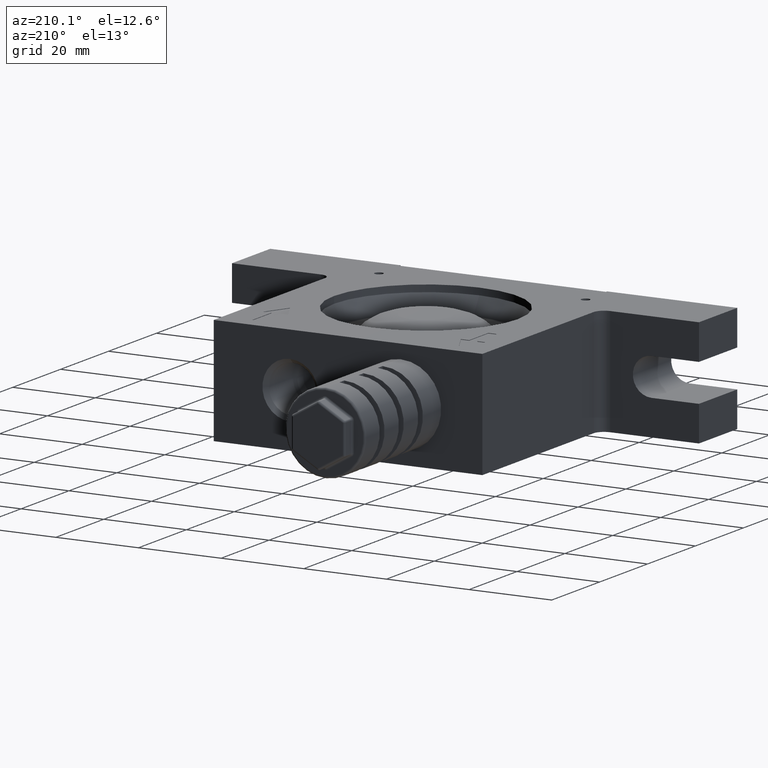
[diagram: clean part render]
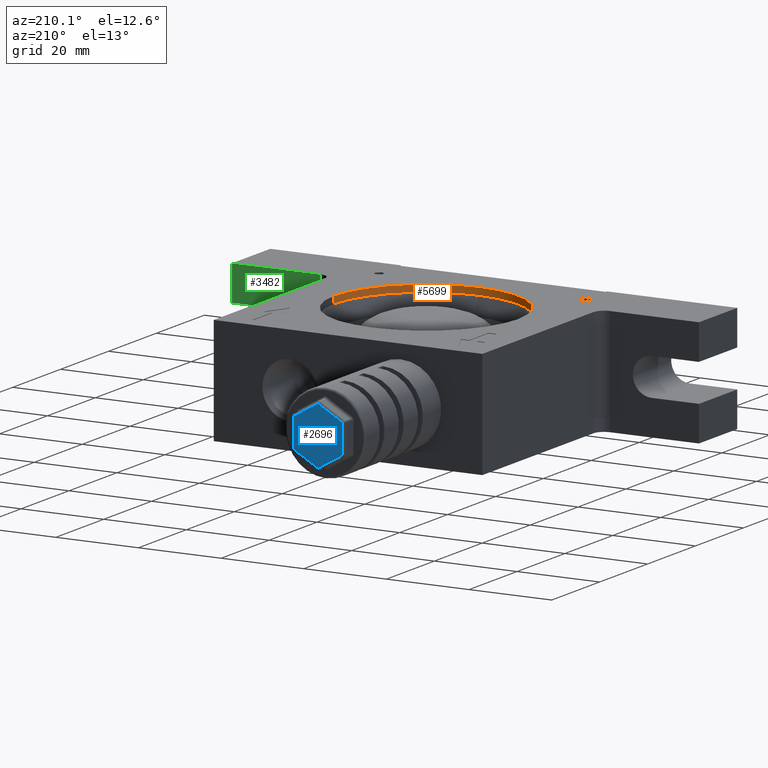
[diagram: same view with three faces highlighted in distinct colors, each labeled with its STEP entity id]
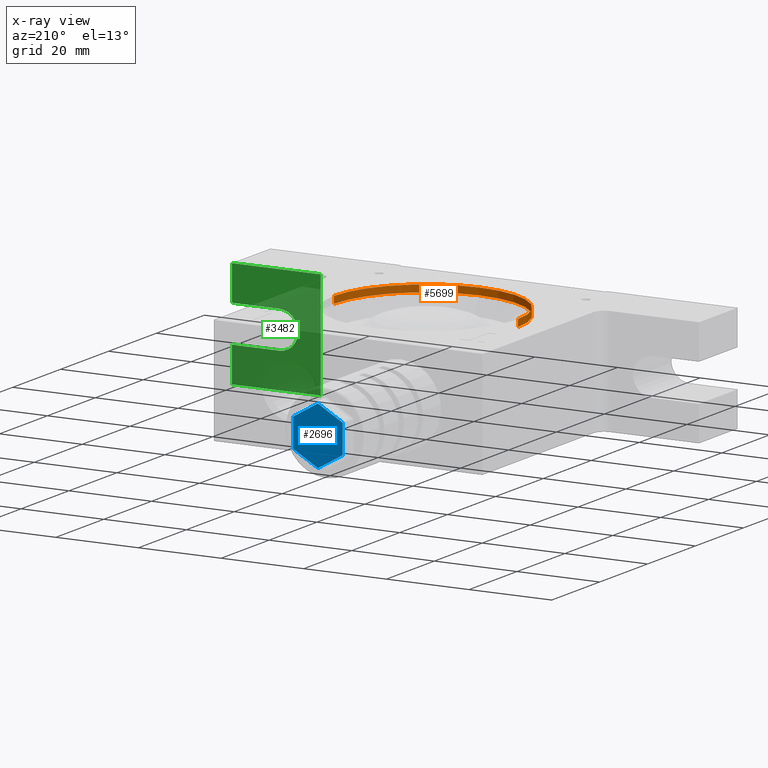
[diagram: x-ray of the same camera — body ghosted, the three highlighted faces saturated]
A machine part, auxiliary view with three faces highlighted in distinct colors.
The next image is the same camera in x-ray (body ghosted, the three faces saturated) — at least one of them is partly hidden behind the body in this view.
Their STEP definitions:

[orange] entity #5699 — the highlighted cylindrical surface (partial cylindrical patch) has radius 22.25 mm, axis along (0, 0, -1).
#55 = LINE ( 'NONE', #6771, #5651 ) ;
#177 = EDGE_CURVE ( 'NONE', #4471, #1538, #5613, .T. ) ;
#179 = DIRECTION ( 'NONE',  ( -1.000000000000000000, 0.0000000000000000000, 0.0000000000000000000 ) ) ;
#322 = ORIENTED_EDGE ( 'NONE', *, *, #177, .F. ) ;
#333 = DIRECTION ( 'NONE',  ( 0.0000000000000000000, 0.0000000000000000000, -1.000000000000000000 ) ) ;
#583 = CARTESIAN_POINT ( 'NONE',  ( 0.0000000000000000000, 0.0000000000000000000, 13.00000000000000000 ) ) ;
#876 = AXIS2_PLACEMENT_3D ( 'NONE', #583, #5495, #2305 ) ;
#1538 = VERTEX_POINT ( 'NONE', #4153 ) ;
#2222 = CYLINDRICAL_SURFACE ( 'NONE', #3822, 22.25000000000000000 ) ;
#2305 = DIRECTION ( 'NONE',  ( -1.000000000000000000, 0.0000000000000000000, 0.0000000000000000000 ) ) ;
#2523 = VECTOR ( 'NONE', #333, 1000.000000000000000 ) ;
#2723 = ORIENTED_EDGE ( 'NONE', *, *, #3229, .F. ) ;
#2968 = EDGE_CURVE ( 'NONE', #4471, #5228, #6743, .T. ) ;
#3026 = DIRECTION ( 'NONE',  ( 0.0000000000000000000, 0.0000000000000000000, -1.000000000000000000 ) ) ;
#3229 = EDGE_CURVE ( 'NONE', #1538, #5031, #55, .T. ) ;
#3460 = EDGE_LOOP ( 'NONE', ( #322, #4880, #5648, #2723 ) ) ;
#3822 = AXIS2_PLACEMENT_3D ( 'NONE', #6201, #6818, #6799 ) ;
#3866 = AXIS2_PLACEMENT_3D ( 'NONE', #5994, #5077, #179 ) ;
#4153 = CARTESIAN_POINT ( 'NONE',  ( -22.25000000000000000, 0.0000000000000000000, 13.00000000000000000 ) ) ;
#4339 = CARTESIAN_POINT ( 'NONE',  ( 22.25000000000000000, 2.724839128102860600E-015, 11.29999999999999900 ) ) ;
#4471 = VERTEX_POINT ( 'NONE', #5735 ) ;
#4619 = CARTESIAN_POINT ( 'NONE',  ( -22.25000000000000000, 0.0000000000000000000, 11.29999999999999900 ) ) ;
#4880 = ORIENTED_EDGE ( 'NONE', *, *, #2968, .T. ) ;
#5031 = VERTEX_POINT ( 'NONE', #4619 ) ;
#5077 = DIRECTION ( 'NONE',  ( 0.0000000000000000000, 0.0000000000000000000, -1.000000000000000000 ) ) ;
#5228 = VERTEX_POINT ( 'NONE', #4339 ) ;
#5495 = DIRECTION ( 'NONE',  ( 0.0000000000000000000, 0.0000000000000000000, -1.000000000000000000 ) ) ;
#5550 = CARTESIAN_POINT ( 'NONE',  ( 22.25000000000000000, 2.724839128102860600E-015, 0.0000000000000000000 ) ) ;
#5613 = CIRCLE ( 'NONE', #876, 22.25000000000000000 ) ;
#5625 = EDGE_CURVE ( 'NONE', #5228, #5031, #6340, .T. ) ;
#5648 = ORIENTED_EDGE ( 'NONE', *, *, #5625, .T. ) ;
#5651 = VECTOR ( 'NONE', #3026, 1000.000000000000000 ) ;
#5699 = ADVANCED_FACE ( 'NONE', ( #6870 ), #2222, .F. ) ;
#5735 = CARTESIAN_POINT ( 'NONE',  ( 22.25000000000000000, 2.724839128102860600E-015, 13.00000000000000000 ) ) ;
#5994 = CARTESIAN_POINT ( 'NONE',  ( 0.0000000000000000000, 0.0000000000000000000, 11.29999999999999900 ) ) ;
#6201 = CARTESIAN_POINT ( 'NONE',  ( 0.0000000000000000000, 0.0000000000000000000, 0.0000000000000000000 ) ) ;
#6340 = CIRCLE ( 'NONE', #3866, 22.25000000000000000 ) ;
#6743 = LINE ( 'NONE', #5550, #2523 ) ;
#6771 = CARTESIAN_POINT ( 'NONE',  ( -22.25000000000000000, 0.0000000000000000000, 0.0000000000000000000 ) ) ;
#6799 = DIRECTION ( 'NONE',  ( -1.000000000000000000, 0.0000000000000000000, 0.0000000000000000000 ) ) ;
#6818 = DIRECTION ( 'NONE',  ( 0.0000000000000000000, 0.0000000000000000000, -1.000000000000000000 ) ) ;
#6870 = FACE_OUTER_BOUND ( 'NONE', #3460, .T. ) ;

[blue] entity #2696 — the highlighted planar face has unit normal (-0, -1, 0).
#172 = DIRECTION ( 'NONE',  ( 0.8660254037844387100, 1.060849887677173600E-016, 0.4999999999999998900 ) ) ;
#503 = LINE ( 'NONE', #2123, #6093 ) ;
#623 = EDGE_LOOP ( 'NONE', ( #6266, #4079, #6906, #6487, #3691, #3963 ) ) ;
#712 = CARTESIAN_POINT ( 'NONE',  ( -12.75000000000000000, 67.50000000000000000, 7.072540797572910000 ) ) ;
#850 = LINE ( 'NONE', #3091, #3134 ) ;
#1015 = VERTEX_POINT ( 'NONE', #2043 ) ;
#1111 = PLANE ( 'NONE',  #4635 ) ;
#1335 = CARTESIAN_POINT ( 'NONE',  ( -9.500000000000000000, 67.50000000000000000, -8.948929172439219900 ) ) ;
#1569 = DIRECTION ( 'NONE',  ( -5.551115123125779600E-017, -1.089523766022741900E-016, -1.000000000000000000 ) ) ;
#1967 = EDGE_CURVE ( 'NONE', #6976, #2408, #503, .T. ) ;
#1997 = CARTESIAN_POINT ( 'NONE',  ( -19.00000000000000000, 67.50000000000000000, 3.464101615137744600 ) ) ;
#2006 = DIRECTION ( 'NONE',  ( 0.8660254037844387100, -2.867387834556749000E-018, -0.4999999999999998900 ) ) ;
#2043 = CARTESIAN_POINT ( 'NONE',  ( -13.00000000000000000, 67.50000000000000000, -6.928203230275520300 ) ) ;
#2123 = CARTESIAN_POINT ( 'NONE',  ( -7.000000000000000000, 67.50000000000000000, -3.752776749732604800 ) ) ;
#2133 = VERTEX_POINT ( 'NONE', #1997 ) ;
#2157 = EDGE_CURVE ( 'NONE', #2408, #1015, #850, .T. ) ;
#2328 = EDGE_CURVE ( 'NONE', #4051, #2133, #6497, .T. ) ;
#2408 = VERTEX_POINT ( 'NONE', #3848 ) ;
#2534 = CARTESIAN_POINT ( 'NONE',  ( -19.00000000000000000, 67.50000000000000000, -3.464101615137769900 ) ) ;
#2696 = ADVANCED_FACE ( 'NONE', ( #6670 ), #1111, .F. ) ;
#2935 = DIRECTION ( 'NONE',  ( -0.8660254037844387100, 2.867387834556629200E-018, 0.4999999999999998900 ) ) ;
#3068 = LINE ( 'NONE', #3197, #4428 ) ;
#3091 = CARTESIAN_POINT ( 'NONE',  ( -6.750000000000000000, 67.50000000000000000, -3.319764047840370000 ) ) ;
#3108 = EDGE_CURVE ( 'NONE', #2133, #6610, #6919, .T. ) ;
#3134 = VECTOR ( 'NONE', #3635, 1000.000000000000000 ) ;
#3197 = CARTESIAN_POINT ( 'NONE',  ( -3.499999999999950300, 67.50000000000000000, 1.443375672974053900 ) ) ;
#3476 = VECTOR ( 'NONE', #6959, 1000.000000000000000 ) ;
#3635 = DIRECTION ( 'NONE',  ( -0.8660254037844387100, -1.060849887677173600E-016, -0.4999999999999998900 ) ) ;
#3691 = ORIENTED_EDGE ( 'NONE', *, *, #2328, .T. ) ;
#3707 = CARTESIAN_POINT ( 'NONE',  ( -19.00000000000000000, 67.50000000000000000, -3.752776749732579900 ) ) ;
#3818 = DIRECTION ( 'NONE',  ( -5.959270968386776700E-017, -1.000000000000000000, 1.089523766022740000E-016 ) ) ;
#3848 = CARTESIAN_POINT ( 'NONE',  ( -7.000000000000000000, 67.50000000000000000, -3.464101615137785000 ) ) ;
#3963 = ORIENTED_EDGE ( 'NONE', *, *, #3108, .T. ) ;
#4051 = VERTEX_POINT ( 'NONE', #2534 ) ;
#4079 = ORIENTED_EDGE ( 'NONE', *, *, #1967, .T. ) ;
#4128 = LINE ( 'NONE', #1335, #6397 ) ;
#4428 = VECTOR ( 'NONE', #2006, 1000.000000000000000 ) ;
#4635 = AXIS2_PLACEMENT_3D ( 'NONE', #7003, #3818, #5485 ) ;
#5363 = EDGE_CURVE ( 'NONE', #1015, #4051, #4128, .T. ) ;
#5485 = DIRECTION ( 'NONE',  ( 1.665334536937734800E-016, 1.089523766022739900E-016, 1.000000000000000000 ) ) ;
#5810 = EDGE_CURVE ( 'NONE', #6610, #6976, #3068, .T. ) ;
#5996 = CARTESIAN_POINT ( 'NONE',  ( -7.000000000000000000, 67.50000000000000000, 3.464101615137744600 ) ) ;
#6093 = VECTOR ( 'NONE', #1569, 1000.000000000000000 ) ;
#6266 = ORIENTED_EDGE ( 'NONE', *, *, #5810, .T. ) ;
#6397 = VECTOR ( 'NONE', #2935, 1000.000000000000000 ) ;
#6487 = ORIENTED_EDGE ( 'NONE', *, *, #5363, .T. ) ;
#6497 = LINE ( 'NONE', #3707, #3476 ) ;
#6582 = VECTOR ( 'NONE', #172, 1000.000000000000000 ) ;
#6610 = VERTEX_POINT ( 'NONE', #6781 ) ;
#6670 = FACE_OUTER_BOUND ( 'NONE', #623, .T. ) ;
#6781 = CARTESIAN_POINT ( 'NONE',  ( -13.00000000000000000, 67.50000000000000000, 6.928203230275509700 ) ) ;
#6906 = ORIENTED_EDGE ( 'NONE', *, *, #2157, .T. ) ;
#6919 = LINE ( 'NONE', #712, #6582 ) ;
#6959 = DIRECTION ( 'NONE',  ( 3.885780586188049900E-016, 1.089523766022739900E-016, 1.000000000000000000 ) ) ;
#6976 = VERTEX_POINT ( 'NONE', #5996 ) ;
#7003 = CARTESIAN_POINT ( 'NONE',  ( -6.500000000000000000, 67.50000000000000000, -3.752776749732590100 ) ) ;

[green] entity #3482 — the highlighted planar face has unit normal (0, -1, 0).
#12 = CIRCLE ( 'NONE', #4811, 4.500000000000000000 ) ;
#58 = CARTESIAN_POINT ( 'NONE',  ( 56.50000000000000000, -16.50000000000000000, -4.500000000000000000 ) ) ;
#82 = LINE ( 'NONE', #784, #3346 ) ;
#187 = DIRECTION ( 'NONE',  ( 0.0000000000000000000, 0.0000000000000000000, 1.000000000000000000 ) ) ;
#229 = CARTESIAN_POINT ( 'NONE',  ( 45.00000000000000000, -16.50000000000000000, -3.520859547548644200E-015 ) ) ;
#337 = VECTOR ( 'NONE', #4093, 1000.000000000000000 ) ;
#519 = ORIENTED_EDGE ( 'NONE', *, *, #4524, .F. ) ;
#577 = CARTESIAN_POINT ( 'NONE',  ( 56.50000000000000000, -16.50000000000000000, 13.00000000000000000 ) ) ;
#779 = ORIENTED_EDGE ( 'NONE', *, *, #6465, .F. ) ;
#784 = CARTESIAN_POINT ( 'NONE',  ( 56.50000000000000000, -16.50000000000000000, -13.00000000000000000 ) ) ;
#834 = CARTESIAN_POINT ( 'NONE',  ( 56.50000000000000000, -16.50000000000000000, 4.500000000000000000 ) ) ;
#958 = LINE ( 'NONE', #577, #5019 ) ;
#1072 = DIRECTION ( 'NONE',  ( 1.000000000000000000, 0.0000000000000000000, 0.0000000000000000000 ) ) ;
#1078 = LINE ( 'NONE', #2439, #1415 ) ;
#1090 = CARTESIAN_POINT ( 'NONE',  ( 56.50000000000000000, -16.50000000000000000, -13.00000000000000000 ) ) ;
#1117 = LINE ( 'NONE', #58, #4319 ) ;
#1144 = CARTESIAN_POINT ( 'NONE',  ( 56.50000000000000000, -16.50000000000000000, -4.500000000000000000 ) ) ;
#1200 = DIRECTION ( 'NONE',  ( -1.000000000000000000, 0.0000000000000000000, 3.771137991253925100E-016 ) ) ;
#1415 = VECTOR ( 'NONE', #1923, 1000.000000000000000 ) ;
#1502 = EDGE_CURVE ( 'NONE', #2513, #2093, #6096, .T. ) ;
#1908 = AXIS2_PLACEMENT_3D ( 'NONE', #4713, #5936, #4310 ) ;
#1923 = DIRECTION ( 'NONE',  ( 0.0000000000000000000, 0.0000000000000000000, 1.000000000000000000 ) ) ;
#2025 = DIRECTION ( 'NONE',  ( 0.0000000000000000000, 0.0000000000000000000, 1.000000000000000000 ) ) ;
#2093 = VERTEX_POINT ( 'NONE', #3442 ) ;
#2370 = DIRECTION ( 'NONE',  ( 0.0000000000000000000, 0.0000000000000000000, 1.000000000000000000 ) ) ;
#2439 = CARTESIAN_POINT ( 'NONE',  ( 56.50000000000000000, -16.50000000000000000, -13.00000000000000000 ) ) ;
#2513 = VERTEX_POINT ( 'NONE', #5211 ) ;
#2688 = ORIENTED_EDGE ( 'NONE', *, *, #1502, .F. ) ;
#2706 = VERTEX_POINT ( 'NONE', #1090 ) ;
#2821 = CARTESIAN_POINT ( 'NONE',  ( 45.00000000000000000, -16.50000000000000000, -4.500000000000000000 ) ) ;
#3278 = CARTESIAN_POINT ( 'NONE',  ( 56.50000000000000000, -16.50000000000000000, 13.00000000000000000 ) ) ;
#3346 = VECTOR ( 'NONE', #3506, 1000.000000000000000 ) ;
#3413 = VERTEX_POINT ( 'NONE', #5821 ) ;
#3442 = CARTESIAN_POINT ( 'NONE',  ( 56.50000000000000000, -16.50000000000000000, 4.500000000000000000 ) ) ;
#3482 = ADVANCED_FACE ( 'NONE', ( #6568 ), #6860, .F. ) ;
#3506 = DIRECTION ( 'NONE',  ( 1.000000000000000000, 0.0000000000000000000, 0.0000000000000000000 ) ) ;
#3514 = ORIENTED_EDGE ( 'NONE', *, *, #5615, .F. ) ;
#3570 = LINE ( 'NONE', #6144, #4492 ) ;
#3864 = ORIENTED_EDGE ( 'NONE', *, *, #5090, .T. ) ;
#4093 = DIRECTION ( 'NONE',  ( 1.000000000000000000, 0.0000000000000000000, -2.262682794752355200E-016 ) ) ;
#4140 = VERTEX_POINT ( 'NONE', #3278 ) ;
#4273 = VECTOR ( 'NONE', #2025, 1000.000000000000000 ) ;
#4310 = DIRECTION ( 'NONE',  ( 0.0000000000000000000, 0.0000000000000000000, -1.000000000000000000 ) ) ;
#4319 = VECTOR ( 'NONE', #1200, 1000.000000000000000 ) ;
#4492 = VECTOR ( 'NONE', #187, 1000.000000000000000 ) ;
#4524 = EDGE_CURVE ( 'NONE', #2706, #4672, #1078, .T. ) ;
#4576 = VERTEX_POINT ( 'NONE', #5174 ) ;
#4672 = VERTEX_POINT ( 'NONE', #1144 ) ;
#4713 = CARTESIAN_POINT ( 'NONE',  ( 56.50000000000000000, -16.50000000000000000, -13.00000000000000000 ) ) ;
#4811 = AXIS2_PLACEMENT_3D ( 'NONE', #229, #5106, #2370 ) ;
#5019 = VECTOR ( 'NONE', #1072, 1000.000000000000000 ) ;
#5040 = LINE ( 'NONE', #5194, #4273 ) ;
#5090 = EDGE_CURVE ( 'NONE', #3413, #4576, #5040, .T. ) ;
#5106 = DIRECTION ( 'NONE',  ( 0.0000000000000000000, 1.000000000000000000, 0.0000000000000000000 ) ) ;
#5174 = CARTESIAN_POINT ( 'NONE',  ( 35.00000000000000000, -16.50000000000000000, 13.00000000000000000 ) ) ;
#5194 = CARTESIAN_POINT ( 'NONE',  ( 35.00000000000000000, -16.50000000000000000, 13.00000000000000000 ) ) ;
#5211 = CARTESIAN_POINT ( 'NONE',  ( 45.00000000000000000, -16.50000000000000000, 4.500000000000000000 ) ) ;
#5267 = ORIENTED_EDGE ( 'NONE', *, *, #5632, .F. ) ;
#5435 = EDGE_LOOP ( 'NONE', ( #779, #2688, #3514, #6629, #519, #5267, #3864, #6776 ) ) ;
#5615 = EDGE_CURVE ( 'NONE', #6083, #2513, #12, .T. ) ;
#5632 = EDGE_CURVE ( 'NONE', #3413, #2706, #82, .T. ) ;
#5821 = CARTESIAN_POINT ( 'NONE',  ( 35.00000000000000000, -16.50000000000000000, -13.00000000000000000 ) ) ;
#5936 = DIRECTION ( 'NONE',  ( 0.0000000000000000000, -1.000000000000000000, 0.0000000000000000000 ) ) ;
#5969 = EDGE_CURVE ( 'NONE', #4576, #4140, #958, .T. ) ;
#6083 = VERTEX_POINT ( 'NONE', #2821 ) ;
#6096 = LINE ( 'NONE', #834, #337 ) ;
#6144 = CARTESIAN_POINT ( 'NONE',  ( 56.50000000000000000, -16.50000000000000000, -13.00000000000000000 ) ) ;
#6465 = EDGE_CURVE ( 'NONE', #2093, #4140, #3570, .T. ) ;
#6568 = FACE_OUTER_BOUND ( 'NONE', #5435, .T. ) ;
#6629 = ORIENTED_EDGE ( 'NONE', *, *, #6905, .F. ) ;
#6776 = ORIENTED_EDGE ( 'NONE', *, *, #5969, .T. ) ;
#6860 = PLANE ( 'NONE',  #1908 ) ;
#6905 = EDGE_CURVE ( 'NONE', #4672, #6083, #1117, .T. ) ;